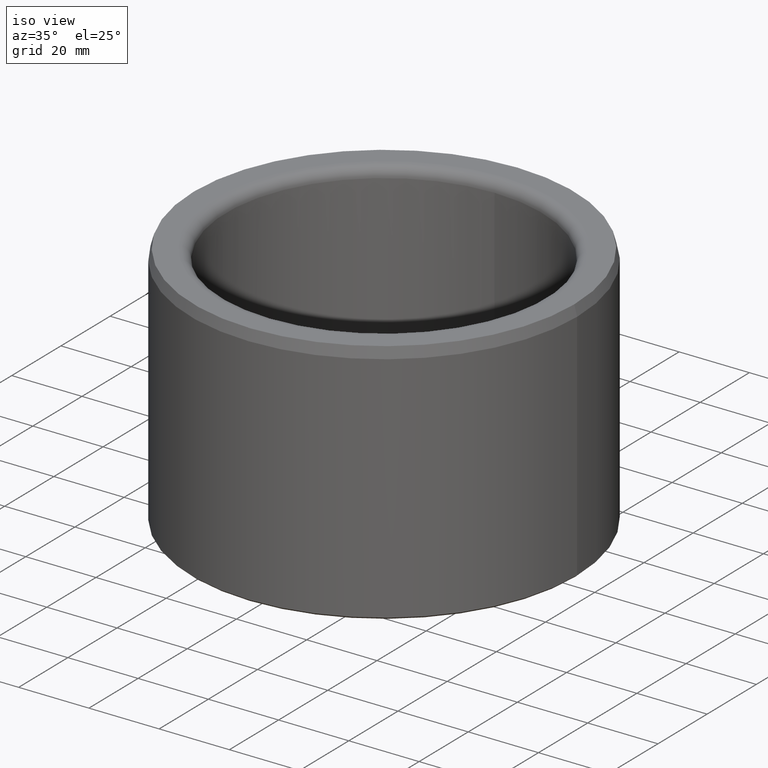
[diagram: clean part render]
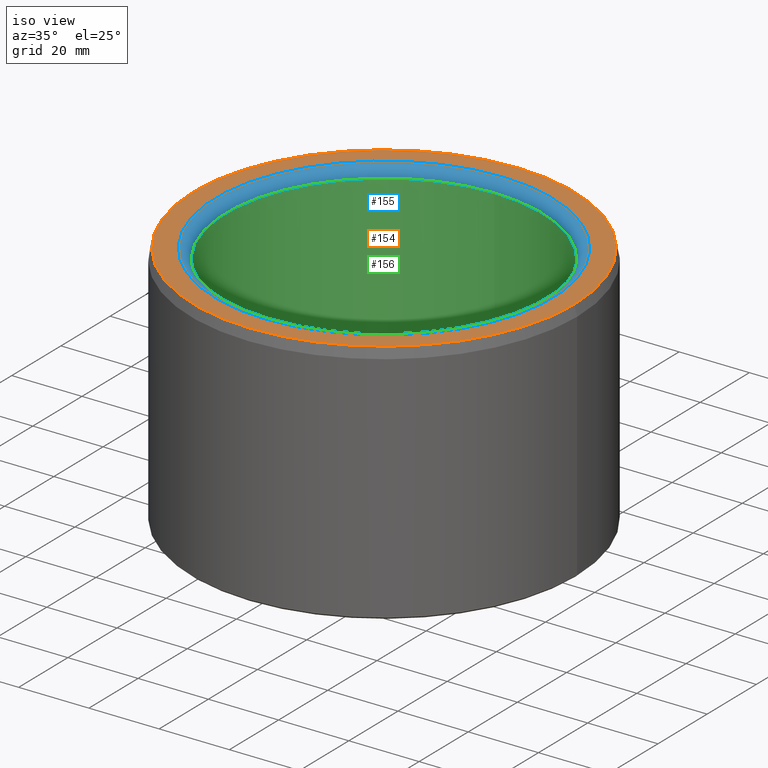
[diagram: same view with three faces highlighted in distinct colors, each labeled with its STEP entity id]
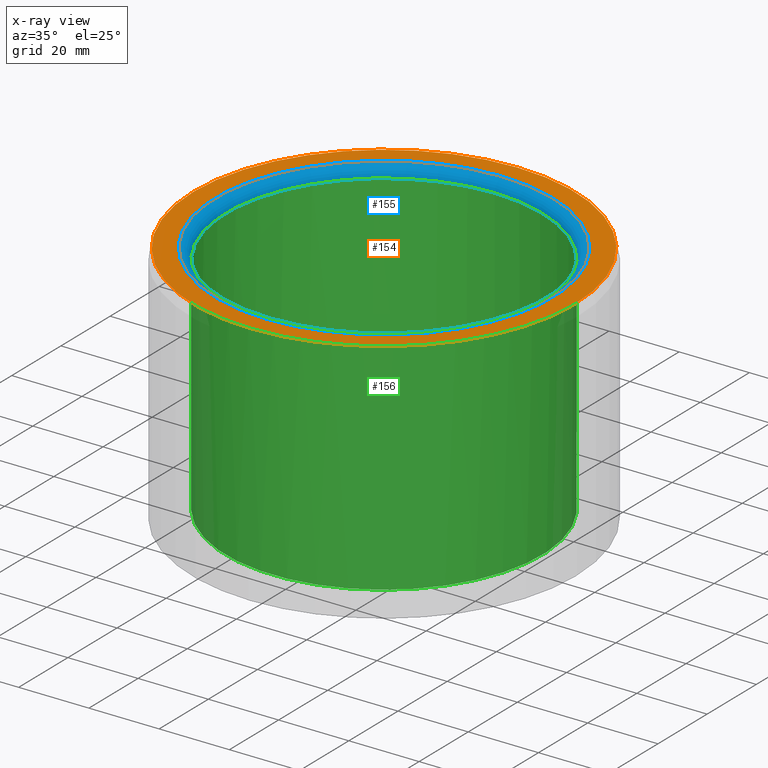
[diagram: x-ray of the same camera — body ghosted, the three highlighted faces saturated]
A machine part, iso view with three faces highlighted in distinct colors.
The next image is the same camera in x-ray (body ghosted, the three faces saturated) — at least one of them is partly hidden behind the body in this view.
Their STEP definitions:

[orange] entity #154 — the highlighted planar face has unit normal (0, 0, 1).
#154=ADVANCED_FACE('',(#166,#167),#168,.T.);
#166=FACE_BOUND('',#191,.T.);
#167=FACE_OUTER_BOUND('',#192,.T.);
#168=PLANE('',#193);
#191=EDGE_LOOP('',(#217));
#192=EDGE_LOOP('',(#218));
#193=AXIS2_PLACEMENT_3D('',#219,#220,#221);
#217=ORIENTED_EDGE('',*,*,#254,.T.);
#218=ORIENTED_EDGE('',*,*,#255,.F.);
#219=CARTESIAN_POINT('',(0.0541961524227066,3.46944695195362E-018,0.07));
#220=DIRECTION('',(0.0,6.12323399573677E-017,1.0));
#221=DIRECTION('',(0.0,-1.0,6.12323399573677E-017));
#254=EDGE_CURVE('',#264,#264,#265,.F.);
#255=EDGE_CURVE('',#266,#266,#267,.T.);
#264=VERTEX_POINT('',#280);
#265=CIRCLE('',#281,0.048);
#266=VERTEX_POINT('',#282);
#267=CIRCLE('',#283,0.0541961524227066);
#280=CARTESIAN_POINT('',(0.0,-0.048,0.07));
#281=AXIS2_PLACEMENT_3D('',#298,#299,#300);
#282=CARTESIAN_POINT('',(0.0541961524227066,3.46944695195362E-018,0.07));
#283=AXIS2_PLACEMENT_3D('',#301,#302,#303);
#298=CARTESIAN_POINT('',(0.0,4.28626379701574E-018,0.07));
#299=DIRECTION('',(0.0,6.12323399573677E-017,1.0));
#300=DIRECTION('',(0.0,-1.0,6.12323399573677E-017));
#301=CARTESIAN_POINT('',(0.0,3.46944695195362E-018,0.07));
#302=DIRECTION('',(0.0,-6.12323399573677E-017,-1.0));
#303=DIRECTION('',(0.0,1.0,-6.12323399573677E-017));

[blue] entity #155 — the highlighted toroidal blend (fillet) surface has major radius 48 mm and minor (blend) radius 3 mm.
#155=ADVANCED_FACE('',(#169,#170),#171,.T.);
#169=FACE_OUTER_BOUND('',#194,.T.);
#170=FACE_OUTER_BOUND('',#195,.T.);
#171=TOROIDAL_SURFACE('',#196,0.048,0.003);
#194=EDGE_LOOP('',(#222));
#195=EDGE_LOOP('',(#223));
#196=AXIS2_PLACEMENT_3D('',#224,#225,#226);
#222=ORIENTED_EDGE('',*,*,#256,.F.);
#223=ORIENTED_EDGE('',*,*,#254,.F.);
#224=CARTESIAN_POINT('',(0.0,4.10256677714363E-018,0.067));
#225=DIRECTION('',(0.0,6.12323399573677E-017,1.0));
#226=DIRECTION('',(0.0,-1.0,6.12323399573677E-017));
#254=EDGE_CURVE('',#264,#264,#265,.F.);
#256=EDGE_CURVE('',#268,#268,#269,.T.);
#264=VERTEX_POINT('',#280);
#265=CIRCLE('',#281,0.048);
#268=VERTEX_POINT('',#284);
#269=CIRCLE('',#285,0.045);
#280=CARTESIAN_POINT('',(0.0,-0.048,0.07));
#281=AXIS2_PLACEMENT_3D('',#298,#299,#300);
#284=CARTESIAN_POINT('',(0.0,-0.045,0.067));
#285=AXIS2_PLACEMENT_3D('',#304,#305,#306);
#298=CARTESIAN_POINT('',(0.0,4.28626379701574E-018,0.07));
#299=DIRECTION('',(0.0,6.12323399573677E-017,1.0));
#300=DIRECTION('',(0.0,-1.0,6.12323399573677E-017));
#304=CARTESIAN_POINT('',(0.0,4.10256677714363E-018,0.067));
#305=DIRECTION('',(0.0,6.12323399573677E-017,1.0));
#306=DIRECTION('',(0.0,-1.0,6.12323399573677E-017));

[green] entity #156 — the highlighted cylindrical surface (bore or boss wall) has radius 45 mm, axis along (0, -0, -1).
#156=ADVANCED_FACE('',(#172,#173),#174,.F.);
#172=FACE_OUTER_BOUND('',#197,.T.);
#173=FACE_OUTER_BOUND('',#198,.T.);
#174=CYLINDRICAL_SURFACE('',#199,0.045);
#197=EDGE_LOOP('',(#227));
#198=EDGE_LOOP('',(#228));
#199=AXIS2_PLACEMENT_3D('',#229,#230,#231);
#227=ORIENTED_EDGE('',*,*,#253,.T.);
#228=ORIENTED_EDGE('',*,*,#256,.T.);
#229=CARTESIAN_POINT('',(0.0,0.0,0.0));
#230=DIRECTION('',(0.0,-6.12323399573677E-017,-1.0));
#231=DIRECTION('',(0.0,1.0,-6.12323399573677E-017));
#253=EDGE_CURVE('',#262,#262,#263,.T.);
#256=EDGE_CURVE('',#268,#268,#269,.T.);
#262=VERTEX_POINT('',#278);
#263=CIRCLE('',#279,0.045);
#268=VERTEX_POINT('',#284);
#269=CIRCLE('',#285,0.045);
#278=CARTESIAN_POINT('',(0.0,0.045,0.003));
#279=AXIS2_PLACEMENT_3D('',#295,#296,#297);
#284=CARTESIAN_POINT('',(0.0,-0.045,0.067));
#285=AXIS2_PLACEMENT_3D('',#304,#305,#306);
#295=CARTESIAN_POINT('',(0.0,1.83697019872103E-019,0.003));
#296=DIRECTION('',(0.0,-6.12323399573677E-017,-1.0));
#297=DIRECTION('',(0.0,1.0,-6.12323399573677E-017));
#304=CARTESIAN_POINT('',(0.0,4.10256677714363E-018,0.067));
#305=DIRECTION('',(0.0,6.12323399573677E-017,1.0));
#306=DIRECTION('',(0.0,-1.0,6.12323399573677E-017));